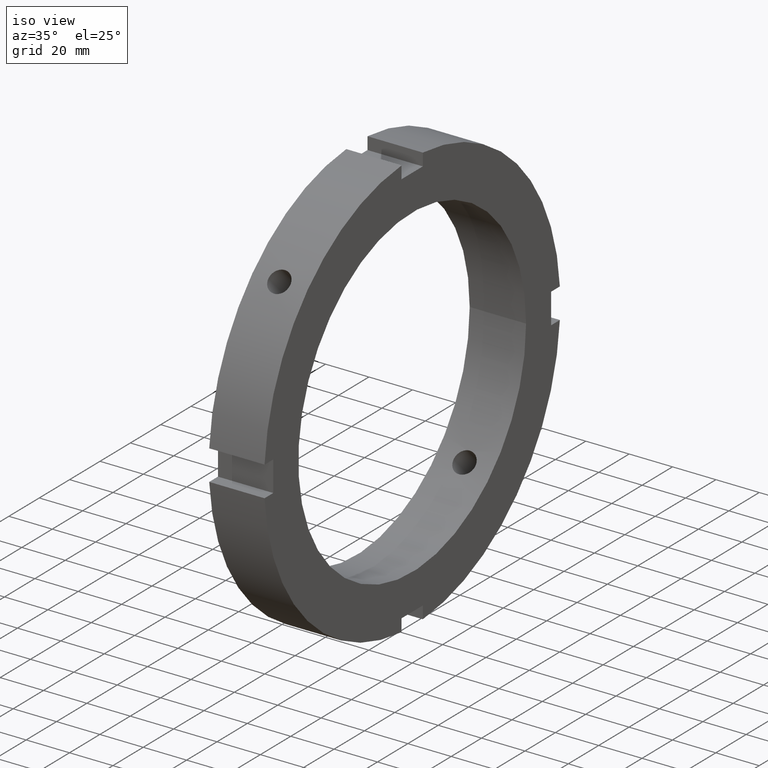
[diagram: clean part render]
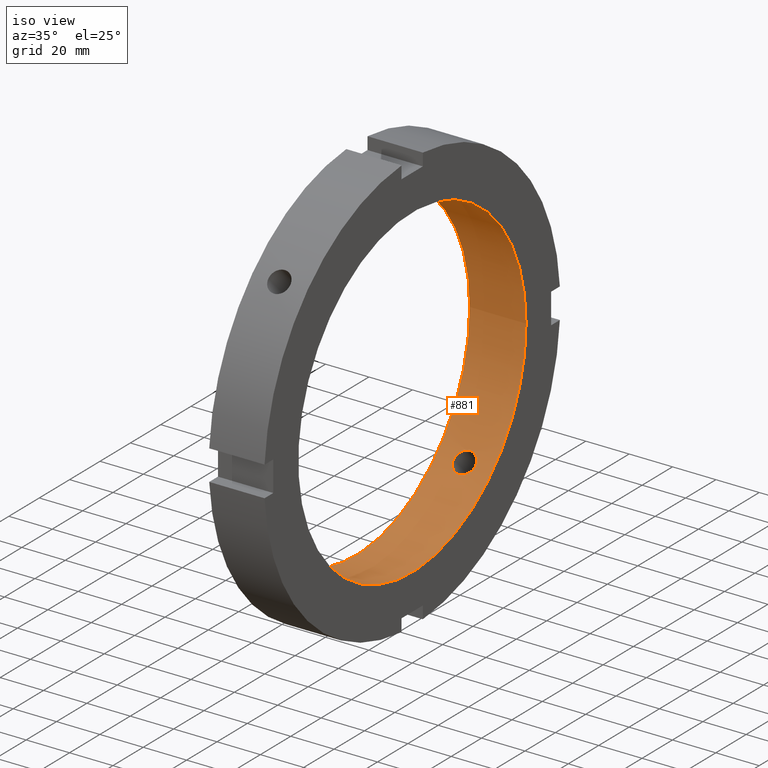
[diagram: same view with one face highlighted and labeled with its STEP entity id]
A machine part, iso view. The second image highlights one B-rep face of the part: STEP entity #881.
In plain terms, the highlighted cylindrical surface (bore or boss wall) has radius 75 mm, axis along (1, 0, 0).
Its self-contained STEP definition (entity closure, byte-faithful):
#114=CARTESIAN_POINT('',(12.999999999999982,-56.485519440836889,49.339498310165638));
#115=VERTEX_POINT('',#114);
#116=CARTESIAN_POINT('',(12.999999999999980,-56.485519440836882,49.339498310165652));
#117=CARTESIAN_POINT('',(13.634672434396043,-56.485519440836882,49.339498310165652));
#118=CARTESIAN_POINT('',(14.311517319139242,-56.402099833074203,49.435512430320458));
#119=CARTESIAN_POINT('',(15.556415124037816,-56.060161845730562,49.822936570699326));
#120=CARTESIAN_POINT('',(16.124484381412824,-55.801322374492784,50.114010562109769));
#121=CARTESIAN_POINT('',(17.021536436308800,-55.197263827353247,50.778575197158773));
#122=CARTESIAN_POINT('',(17.410384214923663,-54.811679390375474,51.196362205940503));
#123=CARTESIAN_POINT('',(17.926121312385931,-53.954109925404765,52.099344745100353));
#124=CARTESIAN_POINT('',(18.052999999999983,-53.481789458057179,52.584227719924939));
#125=CARTESIAN_POINT('',(18.052999999999983,-52.584227719924932,53.481789458057193));
#126=CARTESIAN_POINT('',(17.926121312385938,-52.099344745100325,53.954109925404765));
#127=CARTESIAN_POINT('',(17.410384214923670,-51.196362205940467,54.811679390375474));
#128=CARTESIAN_POINT('',(17.021536436308807,-50.778575197158766,55.197263827353268));
#129=CARTESIAN_POINT('',(16.124484381412834,-50.114010562109755,55.801322374492798));
#130=CARTESIAN_POINT('',(15.556415124037828,-49.822936570699312,56.060161845730569));
#131=CARTESIAN_POINT('',(14.311517319139249,-49.435512430320436,56.402099833074217));
#132=CARTESIAN_POINT('',(13.634672434396045,-49.339498310165652,56.485519440836882));
#133=CARTESIAN_POINT('',(12.365327565603920,-49.339498310165652,56.485519440836882));
#134=CARTESIAN_POINT('',(11.688482680860716,-49.435512430320436,56.402099833074217));
#135=CARTESIAN_POINT('',(10.443584875962138,-49.822936570699312,56.060161845730569));
#136=CARTESIAN_POINT('',(9.875515618587132,-50.114010562109755,55.801322374492798));
#137=CARTESIAN_POINT('',(8.978463563691159,-50.778575197158766,55.197263827353268));
#138=CARTESIAN_POINT('',(8.589615785076292,-51.196362205940467,54.811679390375474));
#139=CARTESIAN_POINT('',(8.073878687614025,-52.099344745100325,53.954109925404765));
#140=CARTESIAN_POINT('',(7.946999999999981,-52.584227719924932,53.481789458057193));
#141=CARTESIAN_POINT('',(7.946999999999985,-53.481789458057193,52.584227719924939));
#142=CARTESIAN_POINT('',(8.073878687614034,-53.954109925404758,52.099344745100339));
#143=CARTESIAN_POINT('',(8.589615785076299,-54.811679390375460,51.196362205940488));
#144=CARTESIAN_POINT('',(8.978463563691165,-55.197263827353247,50.778575197158773));
#145=CARTESIAN_POINT('',(9.875515618587137,-55.801322374492784,50.114010562109769));
#146=CARTESIAN_POINT('',(10.443584875962149,-56.060161845730562,49.822936570699326));
#147=CARTESIAN_POINT('',(11.688482680860727,-56.402099833074203,49.435512430320458));
#148=CARTESIAN_POINT('',(12.365327565603923,-56.485519440836882,49.339498310165638));
#149=CARTESIAN_POINT('',(12.999999999999986,-56.485519440836882,49.339498310165638));
#150=B_SPLINE_CURVE_WITH_KNOTS('',3,(#116,#117,#118,#119,#120,#121,#122,#123,#124,#125,#126,#127,#128,#129,#130,#131,#132,#133,#134,#135,#136,#137,#138,#139,#140,#141,#142,#143,#144,#145,#146,#147,#148,#149),.UNSPECIFIED.,.T.,.U.,(4,2,2,2,2,2,2,2,2,2,2,2,2,2,2,2,4),(0.0,0.190401730318819,0.380803460637638,0.571205058107707,0.761606655577775,0.952008253047844,1.142409850517913,1.332811580836732,1.523213311155551,1.713615041474370,1.904016771793189,2.094418369263258,2.284819966733327,2.475221564203396,2.665623161673465,2.856024891992283,3.046426622311103),.UNSPECIFIED.);
#151=EDGE_CURVE('',#115,#115,#150,.T.);
#202=CARTESIAN_POINT('',(12.999999999999982,49.339498310165631,-56.485519440836896));
#203=VERTEX_POINT('',#202);
#204=CARTESIAN_POINT('',(12.999999999999982,49.339498310165624,-56.485519440836889));
#205=CARTESIAN_POINT('',(12.365327565603920,49.339498310165624,-56.485519440836889));
#206=CARTESIAN_POINT('',(11.688482680860716,49.435512430320436,-56.402099833074217));
#207=CARTESIAN_POINT('',(10.443584875962138,49.822936570699312,-56.060161845730569));
#208=CARTESIAN_POINT('',(9.875515618587132,50.114010562109755,-55.801322374492798));
#209=CARTESIAN_POINT('',(8.978463563691161,50.778575197158773,-55.197263827353268));
#210=CARTESIAN_POINT('',(8.589615785076287,51.196362205940488,-54.811679390375474));
#211=CARTESIAN_POINT('',(8.073878687614023,52.099344745100353,-53.954109925404758));
#212=CARTESIAN_POINT('',(7.946999999999981,52.584227719924939,-53.481789458057193));
#213=CARTESIAN_POINT('',(7.946999999999985,53.481789458057193,-52.584227719924939));
#214=CARTESIAN_POINT('',(8.073878687614029,53.954109925404758,-52.099344745100353));
#215=CARTESIAN_POINT('',(8.589615785076299,54.811679390375467,-51.196362205940495));
#216=CARTESIAN_POINT('',(8.978463563691165,55.197263827353254,-50.778575197158773));
#217=CARTESIAN_POINT('',(9.875515618587137,55.801322374492784,-50.114010562109769));
#218=CARTESIAN_POINT('',(10.443584875962149,56.060161845730562,-49.822936570699326));
#219=CARTESIAN_POINT('',(11.688482680860727,56.402099833074203,-49.435512430320458));
#220=CARTESIAN_POINT('',(12.365327565603920,56.485519440836882,-49.339498310165652));
#221=CARTESIAN_POINT('',(13.634672434396045,56.485519440836867,-49.339498310165638));
#222=CARTESIAN_POINT('',(14.311517319139242,56.402099833074203,-49.435512430320458));
#223=CARTESIAN_POINT('',(15.556415124037814,56.060161845730562,-49.822936570699326));
#224=CARTESIAN_POINT('',(16.124484381412824,55.801322374492784,-50.114010562109769));
#225=CARTESIAN_POINT('',(17.021536436308796,55.197263827353247,-50.778575197158773));
#226=CARTESIAN_POINT('',(17.410384214923663,54.811679390375474,-51.196362205940503));
#227=CARTESIAN_POINT('',(17.926121312385934,53.954109925404765,-52.099344745100353));
#228=CARTESIAN_POINT('',(18.052999999999980,53.481789458057179,-52.584227719924939));
#229=CARTESIAN_POINT('',(18.052999999999983,52.584227719924939,-53.481789458057193));
#230=CARTESIAN_POINT('',(17.926121312385945,52.099344745100353,-53.954109925404758));
#231=CARTESIAN_POINT('',(17.410384214923681,51.196362205940488,-54.811679390375474));
#232=CARTESIAN_POINT('',(17.021536436308807,50.778575197158773,-55.197263827353268));
#233=CARTESIAN_POINT('',(16.124484381412834,50.114010562109755,-55.801322374492798));
#234=CARTESIAN_POINT('',(15.556415124037827,49.822936570699312,-56.060161845730576));
#235=CARTESIAN_POINT('',(14.311517319139249,49.435512430320436,-56.402099833074217));
#236=CARTESIAN_POINT('',(13.634672434396046,49.339498310165624,-56.485519440836889));
#237=CARTESIAN_POINT('',(12.999999999999982,49.339498310165624,-56.485519440836889));
#238=B_SPLINE_CURVE_WITH_KNOTS('',3,(#204,#205,#206,#207,#208,#209,#210,#211,#212,#213,#214,#215,#216,#217,#218,#219,#220,#221,#222,#223,#224,#225,#226,#227,#228,#229,#230,#231,#232,#233,#234,#235,#236,#237),.UNSPECIFIED.,.T.,.U.,(4,2,2,2,2,2,2,2,2,2,2,2,2,2,2,2,4),(0.0,0.190401730318819,0.380803460637638,0.571205058107707,0.761606655577776,0.952008253047844,1.142409850517913,1.332811580836732,1.523213311155551,1.713615041474370,1.904016771793189,2.094418369263258,2.284819966733327,2.475221564203396,2.665623161673465,2.856024891992284,3.046426622311103),.UNSPECIFIED.);
#239=EDGE_CURVE('',#203,#203,#238,.T.);
#712=CARTESIAN_POINT('',(25.999999999999982,75.0,0.0));
#713=VERTEX_POINT('',#712);
#714=CARTESIAN_POINT('',(25.999999999999982,0.0,0.0));
#715=DIRECTION('',(1.0,0.0,0.0));
#716=DIRECTION('',(0.0,1.0,0.0));
#717=AXIS2_PLACEMENT_3D('',#714,#715,#716);
#718=CIRCLE('',#717,75.0);
#719=EDGE_CURVE('',#713,#713,#718,.T.);
#805=CARTESIAN_POINT('',(-2.206775E-014,75.0,0.0));
#806=VERTEX_POINT('',#805);
#807=CARTESIAN_POINT('',(-2.206568E-014,0.0,0.0));
#808=DIRECTION('',(1.0,0.0,0.0));
#809=DIRECTION('',(0.0,1.0,0.0));
#810=AXIS2_PLACEMENT_3D('',#807,#808,#809);
#811=CIRCLE('',#810,75.0);
#812=EDGE_CURVE('',#806,#806,#811,.T.);
#864=CARTESIAN_POINT('',(12.999999999999980,0.0,0.0));
#865=DIRECTION('',(1.0,0.0,0.0));
#866=DIRECTION('',(0.0,1.0,0.0));
#867=AXIS2_PLACEMENT_3D('',#864,#865,#866);
#868=CYLINDRICAL_SURFACE('',#867,75.0);
#869=ORIENTED_EDGE('',*,*,#812,.F.);
#870=EDGE_LOOP('',(#869));
#871=FACE_OUTER_BOUND('',#870,.T.);
#872=ORIENTED_EDGE('',*,*,#151,.T.);
#873=EDGE_LOOP('',(#872));
#874=FACE_BOUND('',#873,.T.);
#875=ORIENTED_EDGE('',*,*,#239,.T.);
#876=EDGE_LOOP('',(#875));
#877=FACE_BOUND('',#876,.T.);
#878=ORIENTED_EDGE('',*,*,#719,.T.);
#879=EDGE_LOOP('',(#878));
#880=FACE_BOUND('',#879,.T.);
#881=ADVANCED_FACE('',(#871,#874,#877,#880),#868,.F.);